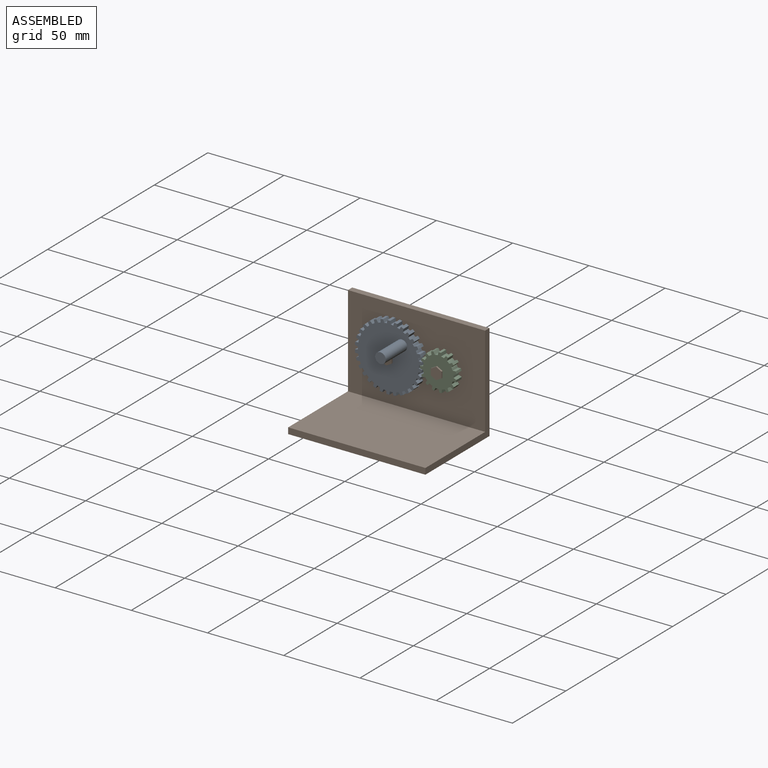
[diagram: assembled view]
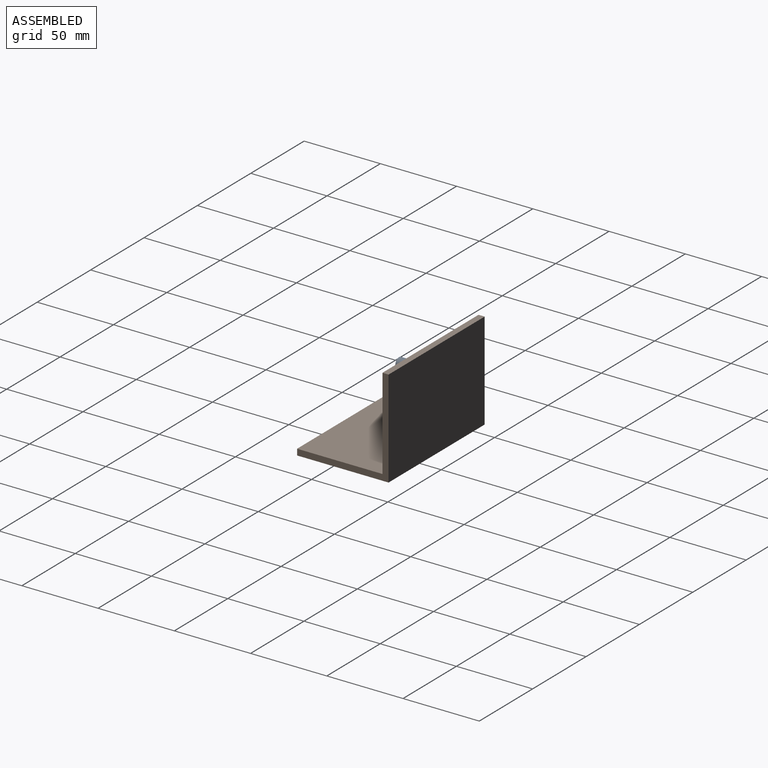
[diagram: assembled view, second angle]
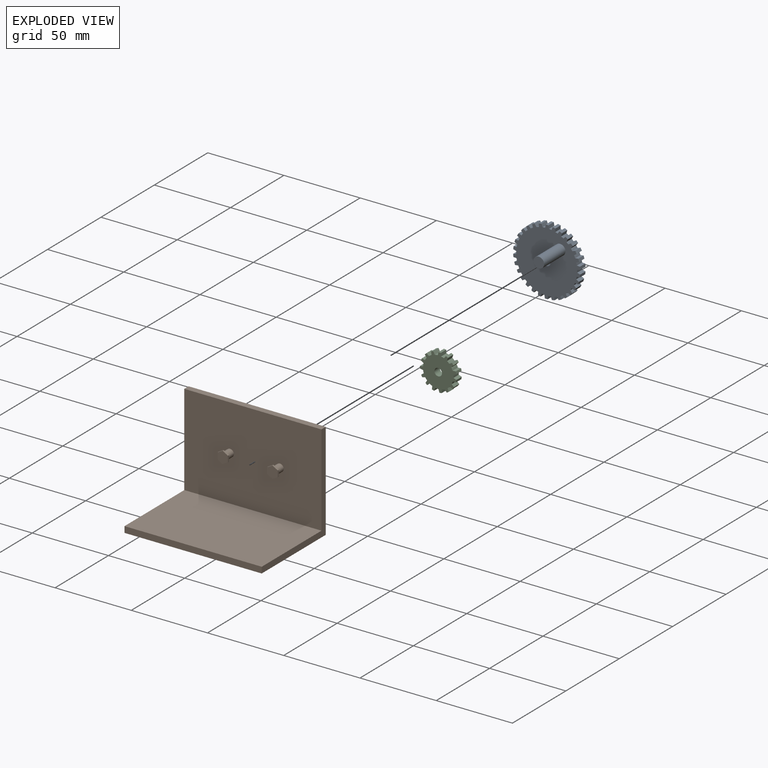
[diagram: exploded view]
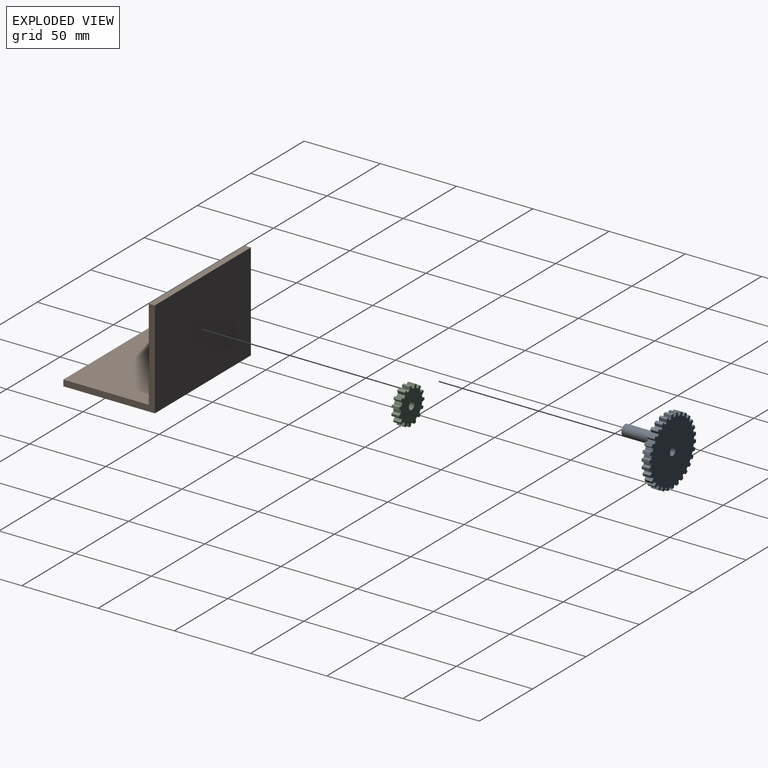
[diagram: exploded view, second angle]
ASSEMBLY  parts=3 mates=2
PART A: 125 faces, bbox 43.9x25x44 mm
  f0: cylinder r=20mm len=5mm, axis (0,1,0), area 8.3mm2, adj f33,f34,f82,f85
  f1: cylinder r=20mm len=5mm, axis (0,1,0), area 8.3mm2, adj f33,f34,f84,f88
  f2: cylinder r=20mm len=5mm, axis (0,1,0), area 8.3mm2, adj f33,f34,f87,f91
  f3: cylinder r=20mm len=5mm, axis (0,1,0), area 8.3mm2, adj f33,f34,f90,f94
  f4: cylinder r=20mm len=5mm, axis (0,1,0), area 8.3mm2, adj f33,f34,f93,f97
  f5: cylinder r=20mm len=5mm, axis (0,1,0), area 8.3mm2, adj f33,f34,f96,f100
  f6: cylinder r=20mm len=5mm, axis (0,1,0), area 8.3mm2, adj f33,f34,f99,f103
  f7: cylinder r=20mm len=5mm, axis (0,1,0), area 8.3mm2, adj f33,f34,f102,f106
  f8: cylinder r=20mm len=5mm, axis (0,1,0), area 8.3mm2, adj f33,f34,f105,f109
  f9: cylinder r=20mm len=5mm, axis (0,1,0), area 8.3mm2, adj f33,f34,f108,f112
  f10: cylinder r=20mm len=5mm, axis (0,1,0), area 8.3mm2, adj f33,f34,f111,f115
  f11: cylinder r=20mm len=5mm, axis (0,1,0), area 8.3mm2, adj f33,f34,f114,f118
  f12: cylinder r=20mm len=5mm, axis (0,1,0), area 8.3mm2, adj f33,f34,f117,f121
  f13: cylinder r=20mm len=5mm, axis (0,1,0), area 8.3mm2, adj f33,f34,f37,f119
  f14: cylinder r=20mm len=5mm, axis (0,1,0), area 8.3mm2, adj f33,f34,f36,f40
  f15: cylinder r=20mm len=5mm, axis (0,1,0), area 8.3mm2, adj f33,f34,f39,f43
  f16: cylinder r=20mm len=5mm, axis (0,1,0), area 8.3mm2, adj f33,f34,f42,f46
  f17: cylinder r=20mm len=5mm, axis (0,1,0), area 8.3mm2, adj f33,f34,f45,f49
  f18: cylinder r=20mm len=5mm, axis (0,1,0), area 8.3mm2, adj f33,f34,f48,f52
  f19: cylinder r=20mm len=5mm, axis (0,1,0), area 8.3mm2, adj f33,f34,f51,f55
  f20: cylinder r=20mm len=5mm, axis (0,1,0), area 8.3mm2, adj f33,f34,f54,f58
  f21: cylinder r=20mm len=5mm, axis (0,1,0), area 8.3mm2, adj f33,f34,f57,f61
  f22: cylinder r=20mm len=5mm, axis (0,1,0), area 8.3mm2, adj f33,f34,f60,f64
  f23: cylinder r=20mm len=5mm, axis (0,1,0), area 8.3mm2, adj f33,f34,f63,f67
  f24: cylinder r=20mm len=5mm, axis (0,1,0), area 8.3mm2, adj f33,f34,f66,f70
  f25: cylinder r=20mm len=5mm, axis (0,1,0), area 8.3mm2, adj f33,f34,f69,f73
  f26: cylinder r=20mm len=5mm, axis (0,1,0), area 8.3mm2, adj f33,f34,f72,f76
  f27: cylinder r=20mm len=5mm, axis (0,1,0), area 8.3mm2, adj f33,f34,f75,f79
  f28: cylinder r=20mm len=5mm, axis (0,1,0), area 8.3mm2, adj f32,f33,f34,f78
  f29: cylinder r=20mm len=5mm, axis (0,1,0), area 8.3mm2, adj f30,f33,f34,f81
  f30: plane 5x2.04mm, normal (0.98,0,0.17), area 10.4mm2, adj f29,f31,f33,f34
  f31: plane 5x1.8mm, normal (0,0,1), area 9mm2, adj f30,f32,f33,f34
  f32: plane 5x2.04mm, normal (-0.98,0,0.17), area 10.4mm2, adj f28,f31,f33,f34
  f33: plane 44x43.95mm, normal (0,-1,0), area 1328.7mm2, adj f0,f1,f2,f3,f4,f5,f6,f7
  f34: plane 44x43.95mm, normal (0,1,0), area 1367.2mm2, adj f0,f1,f2,f3,f4,f5,f6,f7
  f35: plane 5x1.8mm, normal (0,0,-1), area 9mm2, adj f33,f34,f36,f37
  f36: plane 5x2.04mm, normal (-0.98,0,-0.17), area 10.4mm2, adj f14,f33,f34,f35
  f37: plane 5x2.04mm, normal (0.98,0,-0.17), area 10.4mm2, adj f13,f33,f34,f35
  f38: plane 5x1.76mm, normal (-0.21,0,-0.98), area 9mm2, adj f33,f34,f39,f40
  f39: plane 5x2.07mm, normal (-1,0,0.03), area 10.4mm2, adj f15,f33,f34,f38
  f40: plane 5x1.92mm, normal (0.93,0,-0.37), area 10.4mm2, adj f14,f33,f34,f38
  f41: plane 5x1.64mm, normal (-0.41,0,-0.91), area 9mm2, adj f33,f34,f42,f43
  f42: plane 5x2.01mm, normal (-0.97,0,0.24), area 10.4mm2, adj f16,f33,f34,f41
  f43: plane 5x1.72mm, normal (0.83,0,-0.56), area 10.4mm2, adj f15,f33,f34,f41
  f44: plane 5x1.46mm, normal (-0.59,0,-0.81), area 9mm2, adj f33,f34,f45,f46
  f45: plane 5x1.86mm, normal (-0.9,0,0.44), area 10.4mm2, adj f17,f33,f34,f44
  f46: plane 5x1.49mm, normal (0.69,0,-0.72), area 10.4mm2, adj f16,f33,f34,f44
  f47: plane 5x1.34mm, normal (-0.74,0,-0.67), area 9mm2, adj f33,f34,f48,f49
  f48: plane 5x1.63mm, normal (-0.79,0,0.62), area 10.4mm2, adj f18,f33,f34,f47
  f49: plane 5x1.76mm, normal (0.53,0,-0.85), area 10.4mm2, adj f17,f33,f34,f47
  f50: plane 5x1.56mm, normal (-0.87,0,-0.5), area 9mm2, adj f33,f34,f51,f52
  f51: plane 5x1.59mm, normal (-0.64,0,0.77), area 10.4mm2, adj f19,f33,f34,f50
  f52: plane 5x1.95mm, normal (0.34,0,-0.94), area 10.4mm2, adj f18,f33,f34,f50
  f53: plane 5x1.71mm, normal (-0.95,0,-0.31), area 9mm2, adj f33,f34,f54,f55
  f54: plane 5x1.83mm, normal (-0.47,0,0.88), area 10.4mm2, adj f20,f33,f34,f53
  f55: plane 5x2.05mm, normal (0.14,0,-0.99), area 10.4mm2, adj f19,f33,f34,f53
  f56: plane 5x1.79mm, normal (-0.99,0,-0.1), area 9mm2, adj f33,f34,f57,f58
  f57: plane 5x1.99mm, normal (-0.28,0,0.96), area 10.4mm2, adj f21,f33,f34,f56
  f58: plane 5x2.07mm, normal (-0.07,0,-1), area 10.4mm2, adj f20,f33,f34,f56
  f59: plane 5x1.79mm, normal (-0.99,0,0.1), area 9mm2, adj f33,f34,f60,f61
  f60: plane 5x2.07mm, normal (-0.07,0,1), area 10.4mm2, adj f22,f33,f34,f59
  f61: plane 5x1.99mm, normal (-0.28,0,-0.96), area 10.4mm2, adj f21,f33,f34,f59
  f62: plane 5x1.71mm, normal (-0.95,0,0.31), area 9mm2, adj f33,f34,f63,f64
  f63: plane 5x2.05mm, normal (0.14,0,0.99), area 10.4mm2, adj f23,f33,f34,f62
  f64: plane 5x1.83mm, normal (-0.47,0,-0.88), area 10.4mm2, adj f22,f33,f34,f62
  f65: plane 5x1.56mm, normal (-0.87,0,0.5), area 9mm2, adj f33,f34,f66,f67
  f66: plane 5x1.95mm, normal (0.34,0,0.94), area 10.4mm2, adj f24,f33,f34,f65
  f67: plane 5x1.59mm, normal (-0.64,0,-0.77), area 10.4mm2, adj f23,f33,f34,f65
  f68: plane 5x1.34mm, normal (-0.74,0,0.67), area 9mm2, adj f33,f34,f69,f70
  f69: plane 5x1.76mm, normal (0.53,0,0.85), area 10.4mm2, adj f25,f33,f34,f68
  f70: plane 5x1.63mm, normal (-0.79,0,-0.62), area 10.4mm2, adj f24,f33,f34,f68
  f71: plane 5x1.46mm, normal (-0.59,0,0.81), area 9mm2, adj f33,f34,f72,f73
  f72: plane 5x1.49mm, normal (0.69,0,0.72), area 10.4mm2, adj f26,f33,f34,f71
  f73: plane 5x1.86mm, normal (-0.9,0,-0.44), area 10.4mm2, adj f25,f33,f34,f71
  f74: plane 5x1.64mm, normal (-0.41,0,0.91), area 9mm2, adj f33,f34,f75,f76
  f75: plane 5x1.72mm, normal (0.83,0,0.56), area 10.4mm2, adj f27,f33,f34,f74
  f76: plane 5x2.01mm, normal (-0.97,0,-0.24), area 10.4mm2, adj f26,f33,f34,f74
  f77: plane 5x1.76mm, normal (-0.21,0,0.98), area 9mm2, adj f33,f34,f78,f79
  f78: plane 5x1.92mm, normal (0.93,0,0.37), area 10.4mm2, adj f28,f33,f34,f77
  f79: plane 5x2.07mm, normal (-1,0,-0.03), area 10.4mm2, adj f27,f33,f34,f77
  f80: plane 5x1.76mm, normal (0.21,0,0.98), area 9mm2, adj f33,f34,f81,f82
  f81: plane 5x1.92mm, normal (-0.93,0,0.37), area 10.4mm2, adj f29,f33,f34,f80
  f82: plane 5x2.07mm, normal (1,0,-0.03), area 10.4mm2, adj f0,f33,f34,f80
  f83: plane 5x1.64mm, normal (0.41,0,0.91), area 9mm2, adj f33,f34,f84,f85
  f84: plane 5x2.01mm, normal (0.97,0,-0.24), area 10.4mm2, adj f1,f33,f34,f83
  f85: plane 5x1.72mm, normal (-0.83,0,0.56), area 10.4mm2, adj f0,f33,f34,f83
  f86: plane 5x1.46mm, normal (0.59,0,0.81), area 9mm2, adj f33,f34,f87,f88
  f87: plane 5x1.86mm, normal (0.9,0,-0.44), area 10.4mm2, adj f2,f33,f34,f86
  f88: plane 5x1.49mm, normal (-0.69,0,0.72), area 10.4mm2, adj f1,f33,f34,f86
  f89: plane 5x1.34mm, normal (0.74,0,0.67), area 9mm2, adj f33,f34,f90,f91
  f90: plane 5x1.63mm, normal (0.79,0,-0.62), area 10.4mm2, adj f3,f33,f34,f89
  f91: plane 5x1.76mm, normal (-0.53,0,0.85), area 10.4mm2, adj f2,f33,f34,f89
  f92: plane 5x1.56mm, normal (0.87,0,0.5), area 9mm2, adj f33,f34,f93,f94
  f93: plane 5x1.59mm, normal (0.64,0,-0.77), area 10.4mm2, adj f4,f33,f34,f92
  f94: plane 5x1.95mm, normal (-0.34,0,0.94), area 10.4mm2, adj f3,f33,f34,f92
  f95: plane 5x1.71mm, normal (0.95,0,0.31), area 9mm2, adj f33,f34,f96,f97
  f96: plane 5x1.83mm, normal (0.47,0,-0.88), area 10.4mm2, adj f5,f33,f34,f95
  f97: plane 5x2.05mm, normal (-0.14,0,0.99), area 10.4mm2, adj f4,f33,f34,f95
  f98: plane 5x1.79mm, normal (0.99,0,0.1), area 9mm2, adj f33,f34,f99,f100
  f99: plane 5x1.99mm, normal (0.28,0,-0.96), area 10.4mm2, adj f6,f33,f34,f98
  f100: plane 5x2.07mm, normal (0.07,0,1), area 10.4mm2, adj f5,f33,f34,f98
  f101: plane 5x1.79mm, normal (0.99,0,-0.1), area 9mm2, adj f33,f34,f102,f103
  f102: plane 5x2.07mm, normal (0.07,0,-1), area 10.4mm2, adj f7,f33,f34,f101
  f103: plane 5x1.99mm, normal (0.28,0,0.96), area 10.4mm2, adj f6,f33,f34,f101
  f104: plane 5x1.71mm, normal (0.95,0,-0.31), area 9mm2, adj f33,f34,f105,f106
  f105: plane 5x2.05mm, normal (-0.14,0,-0.99), area 10.4mm2, adj f8,f33,f34,f104
  f106: plane 5x1.83mm, normal (0.47,0,0.88), area 10.4mm2, adj f7,f33,f34,f104
  f107: plane 5x1.56mm, normal (0.87,0,-0.5), area 9mm2, adj f33,f34,f108,f109
  f108: plane 5x1.95mm, normal (-0.34,0,-0.94), area 10.4mm2, adj f9,f33,f34,f107
  f109: plane 5x1.59mm, normal (0.64,0,0.77), area 10.4mm2, adj f8,f33,f34,f107
  f110: plane 5x1.34mm, normal (0.74,0,-0.67), area 9mm2, adj f33,f34,f111,f112
  f111: plane 5x1.76mm, normal (-0.53,0,-0.85), area 10.4mm2, adj f10,f33,f34,f110
  f112: plane 5x1.63mm, normal (0.79,0,0.62), area 10.4mm2, adj f9,f33,f34,f110
  f113: plane 5x1.46mm, normal (0.59,0,-0.81), area 9mm2, adj f33,f34,f114,f115
  f114: plane 5x1.49mm, normal (-0.69,0,-0.72), area 10.4mm2, adj f11,f33,f34,f113
  f115: plane 5x1.86mm, normal (0.9,0,0.44), area 10.4mm2, adj f10,f33,f34,f113
  f116: plane 5x1.64mm, normal (0.41,0,-0.91), area 9mm2, adj f33,f34,f117,f118
  f117: plane 5x1.72mm, normal (-0.83,0,-0.56), area 10.4mm2, adj f12,f33,f34,f116
  f118: plane 5x2.01mm, normal (0.97,0,0.24), area 10.4mm2, adj f11,f33,f34,f116
  f119: plane 5x1.92mm, normal (-0.93,0,-0.37), area 10.4mm2, adj f13,f33,f34,f120
  f120: plane 5x1.76mm, normal (0.21,0,-0.98), area 9mm2, adj f33,f34,f119,f121
  f121: plane 5x2.07mm, normal (1,0,0.03), area 10.4mm2, adj f12,f33,f34,f120
  f122: cylinder r=2.5mm len=5mm, axis (0,-1,0), area 78.5mm2, adj f33,f34
  f123: cylinder r=3.5mm len=20mm, axis (0,1,0), area 439.8mm2, adj f33,f124
  f124: plane 7x7mm, normal (0,-1,0), area 38.5mm2, adj f123
PART B: 26 faces, bbox 90x60x64 mm
  f0: plane 90x64mm, normal (0,1,0), area 5760mm2, adj f1,f3,f5,f7
  f1: plane 64x60mm, normal (-1,0,0), area 480mm2, adj f0,f2,f4,f5,f6,f7
  f2: plane 90x4mm, normal (0,-1,0), area 360mm2, adj f1,f3,f4,f5
  f3: plane 64x60mm, normal (1,0,0), area 480mm2, adj f0,f2,f4,f5,f6,f7
  f4: plane 90x56mm, normal (0,0,1), area 5040mm2, adj f1,f2,f3,f6
  f5: plane 90x60mm, normal (0,0,-1), area 5400mm2, adj f0,f1,f2,f3
  f6: plane 90x60mm, normal (0,-1,0), area 5360.7mm2, adj f1,f3,f4,f7,f8,f9
  f7: plane 90x4mm, normal (0,0,1), area 360mm2, adj f0,f1,f3,f6
  f8: cylinder r=2.5mm len=6mm, axis (0,1,0), area 94.2mm2, adj f6,f17
  f9: cylinder r=2.5mm len=6mm, axis (0,1,0), area 94.2mm2, adj f6,f25
  f10: plane 3.5x2.02mm, normal (-0.5,0,0.87), area 4mm2, adj f11,f15,f16,f17
  f11: plane 4.04x1mm, normal (-1,0,0), area 4mm2, adj f10,f12,f16,f17
  f12: plane 3.5x2.02mm, normal (-0.5,0,-0.87), area 4mm2, adj f11,f13,f16,f17
  f13: plane 3.5x2.02mm, normal (0.5,0,-0.87), area 4mm2, adj f12,f14,f16,f17
  f14: plane 4.04x1mm, normal (1,0,0), area 4mm2, adj f13,f15,f16,f17
  f15: plane 3.5x2.02mm, normal (0.5,0,0.87), area 4mm2, adj f10,f14,f16,f17
  f16: plane 8.08x7mm, normal (0,-1,0), area 42.4mm2, adj f10,f11,f12,f13,f14,f15
  f17: plane 8.08x7mm, normal (0,1,0), area 22.8mm2, adj f8,f10,f11,f12,f13,f14,f15
  f18: plane 3.5x2.02mm, normal (0.5,0,-0.87), area 4mm2, adj f19,f23,f24,f25
  f19: plane 4.04x1mm, normal (1,0,0), area 4mm2, adj f18,f20,f24,f25
  f20: plane 3.5x2.02mm, normal (0.5,0,0.87), area 4mm2, adj f19,f21,f24,f25
  f21: plane 3.5x2.02mm, normal (-0.5,0,0.87), area 4mm2, adj f20,f22,f24,f25
  f22: plane 4.04x1mm, normal (-1,0,0), area 4mm2, adj f21,f23,f24,f25
  f23: plane 3.5x2.02mm, normal (-0.5,0,-0.87), area 4mm2, adj f18,f22,f24,f25
  f24: plane 8.08x7mm, normal (0,-1,0), area 42.4mm2, adj f18,f19,f20,f21,f22,f23
  f25: plane 8.08x7mm, normal (0,1,0), area 22.8mm2, adj f9,f18,f19,f20,f21,f22,f23
PART C: 63 faces, bbox 24x5x23.9 mm
  f0: cylinder r=10mm len=5mm, axis (0,1,0), area 9.8mm2, adj f18,f19,f43,f46
  f1: cylinder r=10mm len=5mm, axis (0,1,0), area 9.8mm2, adj f18,f19,f45,f49
  f2: cylinder r=10mm len=5mm, axis (0,1,0), area 9.8mm2, adj f18,f19,f48,f52
  f3: cylinder r=10mm len=5mm, axis (0,1,0), area 9.8mm2, adj f18,f19,f51,f55
  f4: cylinder r=10mm len=5mm, axis (0,1,0), area 9.8mm2, adj f18,f19,f54,f58
  f5: cylinder r=10mm len=5mm, axis (0,1,0), area 9.8mm2, adj f18,f19,f57,f61
  f6: cylinder r=10mm len=5mm, axis (0,1,0), area 9.8mm2, adj f18,f19,f22,f59
  f7: cylinder r=10mm len=5mm, axis (0,1,0), area 9.8mm2, adj f18,f19,f21,f25
  f8: cylinder r=10mm len=5mm, axis (0,1,0), area 9.8mm2, adj f18,f19,f24,f28
  f9: cylinder r=10mm len=5mm, axis (0,1,0), area 9.8mm2, adj f18,f19,f27,f31
  f10: cylinder r=10mm len=5mm, axis (0,1,0), area 9.8mm2, adj f18,f19,f30,f34
  f11: cylinder r=10mm len=5mm, axis (0,1,0), area 9.8mm2, adj f18,f19,f33,f37
  f12: cylinder r=10mm len=5mm, axis (0,1,0), area 9.8mm2, adj f18,f19,f36,f40
  f13: cylinder r=10mm len=5mm, axis (0,1,0), area 9.8mm2, adj f17,f18,f19,f39
  f14: cylinder r=10mm len=5mm, axis (0,1,0), area 9.8mm2, adj f15,f18,f19,f42
  f15: plane 5x2.06mm, normal (0.98,0,0.17), area 10.5mm2, adj f14,f16,f18,f19
  f16: plane 5x1.5mm, normal (0,0,1), area 7.5mm2, adj f15,f17,f18,f19
  f17: plane 5x2.06mm, normal (-0.98,0,0.17), area 10.5mm2, adj f13,f16,f18,f19
  f18: plane 24.03x23.89mm, normal (0,-1,0), area 350.8mm2, adj f0,f1,f2,f3,f4,f5,f6,f7
  f19: plane 24.03x23.89mm, normal (0,1,0), area 350.8mm2, adj f0,f1,f2,f3,f4,f5,f6,f7
  f20: plane 5x1.47mm, normal (-0.21,0,-0.98), area 7.5mm2, adj f18,f19,f21,f22
  f21: plane 5x2.09mm, normal (-1,0,0.03), area 10.5mm2, adj f7,f18,f19,f20
  f22: plane 5x1.94mm, normal (0.93,0,-0.37), area 10.5mm2, adj f6,f18,f19,f20
  f23: plane 5x1.21mm, normal (-0.59,0,-0.81), area 7.5mm2, adj f18,f19,f24,f25
  f24: plane 5x1.88mm, normal (-0.9,0,0.44), area 10.5mm2, adj f8,f18,f19,f23
  f25: plane 5x1.51mm, normal (0.69,0,-0.72), area 10.5mm2, adj f7,f18,f19,f23
  f26: plane 5x1.3mm, normal (-0.87,0,-0.5), area 7.5mm2, adj f18,f19,f27,f28
  f27: plane 5x1.6mm, normal (-0.64,0,0.77), area 10.5mm2, adj f9,f18,f19,f26
  f28: plane 5x1.97mm, normal (0.34,0,-0.94), area 10.5mm2, adj f8,f18,f19,f26
  f29: plane 5x1.49mm, normal (-0.99,0,-0.1), area 7.5mm2, adj f18,f19,f30,f31
  f30: plane 5x2.01mm, normal (-0.28,0,0.96), area 10.5mm2, adj f10,f18,f19,f29
  f31: plane 5x2.09mm, normal (-0.07,0,-1), area 10.5mm2, adj f9,f18,f19,f29
  f32: plane 5x1.43mm, normal (-0.95,0,0.31), area 7.5mm2, adj f18,f19,f33,f34
  f33: plane 5x2.07mm, normal (0.14,0,0.99), area 10.5mm2, adj f11,f18,f19,f32
  f34: plane 5x1.85mm, normal (-0.47,0,-0.88), area 10.5mm2, adj f10,f18,f19,f32
  f35: plane 5x1.11mm, normal (-0.74,0,0.67), area 7.5mm2, adj f18,f19,f36,f37
  f36: plane 5x1.78mm, normal (0.53,0,0.85), area 10.5mm2, adj f12,f18,f19,f35
  f37: plane 5x1.65mm, normal (-0.79,0,-0.62), area 10.5mm2, adj f11,f18,f19,f35
  f38: plane 5x1.37mm, normal (-0.41,0,0.91), area 7.5mm2, adj f18,f19,f39,f40
  f39: plane 5x1.74mm, normal (0.83,0,0.56), area 10.5mm2, adj f13,f18,f19,f38
  f40: plane 5x2.03mm, normal (-0.97,0,-0.24), area 10.5mm2, adj f12,f18,f19,f38
  f41: plane 5x1.37mm, normal (0.41,0,0.91), area 7.5mm2, adj f18,f19,f42,f43
  f42: plane 5x1.74mm, normal (-0.83,0,0.56), area 10.5mm2, adj f14,f18,f19,f41
  f43: plane 5x2.03mm, normal (0.97,0,-0.24), area 10.5mm2, adj f0,f18,f19,f41
  f44: plane 5x1.11mm, normal (0.74,0,0.67), area 7.5mm2, adj f18,f19,f45,f46
  f45: plane 5x1.65mm, normal (0.79,0,-0.62), area 10.5mm2, adj f1,f18,f19,f44
  f46: plane 5x1.78mm, normal (-0.53,0,0.85), area 10.5mm2, adj f0,f18,f19,f44
  f47: plane 5x1.43mm, normal (0.95,0,0.31), area 7.5mm2, adj f18,f19,f48,f49
  f48: plane 5x1.85mm, normal (0.47,0,-0.88), area 10.5mm2, adj f2,f18,f19,f47
  f49: plane 5x2.07mm, normal (-0.14,0,0.99), area 10.5mm2, adj f1,f18,f19,f47
  f50: plane 5x1.49mm, normal (0.99,0,-0.1), area 7.5mm2, adj f18,f19,f51,f52
  f51: plane 5x2.09mm, normal (0.07,0,-1), area 10.5mm2, adj f3,f18,f19,f50
  f52: plane 5x2.01mm, normal (0.28,0,0.96), area 10.5mm2, adj f2,f18,f19,f50
  f53: plane 5x1.3mm, normal (0.87,0,-0.5), area 7.5mm2, adj f18,f19,f54,f55
  f54: plane 5x1.97mm, normal (-0.34,0,-0.94), area 10.5mm2, adj f4,f18,f19,f53
  f55: plane 5x1.6mm, normal (0.64,0,0.77), area 10.5mm2, adj f3,f18,f19,f53
  f56: plane 5x1.21mm, normal (0.59,0,-0.81), area 7.5mm2, adj f18,f19,f57,f58
  f57: plane 5x1.51mm, normal (-0.69,0,-0.72), area 10.5mm2, adj f5,f18,f19,f56
  f58: plane 5x1.88mm, normal (0.9,0,0.44), area 10.5mm2, adj f4,f18,f19,f56
  f59: plane 5x1.94mm, normal (-0.93,0,-0.37), area 10.5mm2, adj f6,f18,f19,f60
  f60: plane 5x1.47mm, normal (0.21,0,-0.98), area 7.5mm2, adj f18,f19,f59,f61
  f61: plane 5x2.09mm, normal (1,0,0.03), area 10.5mm2, adj f5,f18,f19,f60
  f62: cylinder r=2.5mm len=5mm, axis (0,-1,0), area 78.5mm2, adj f18,f19
PLACE A rot(axis=(0,1,0),132.7deg) t=(-27.1,34.51,25.26)mm
PLACE B t=(-12.1,8.51,-8.74)mm fixed
PLACE C rot(axis=(0,1,0),4.6deg) t=(5.6,34.51,25.26)mm
MATE revolute B.f9 <-> C.f62  axis (0,-1,0) through (5.6,34.51,25.26)mm
MATE revolute B.f8 <-> A.f0  axis (0,-1,0) through (-27.1,34.51,25.26)mm
